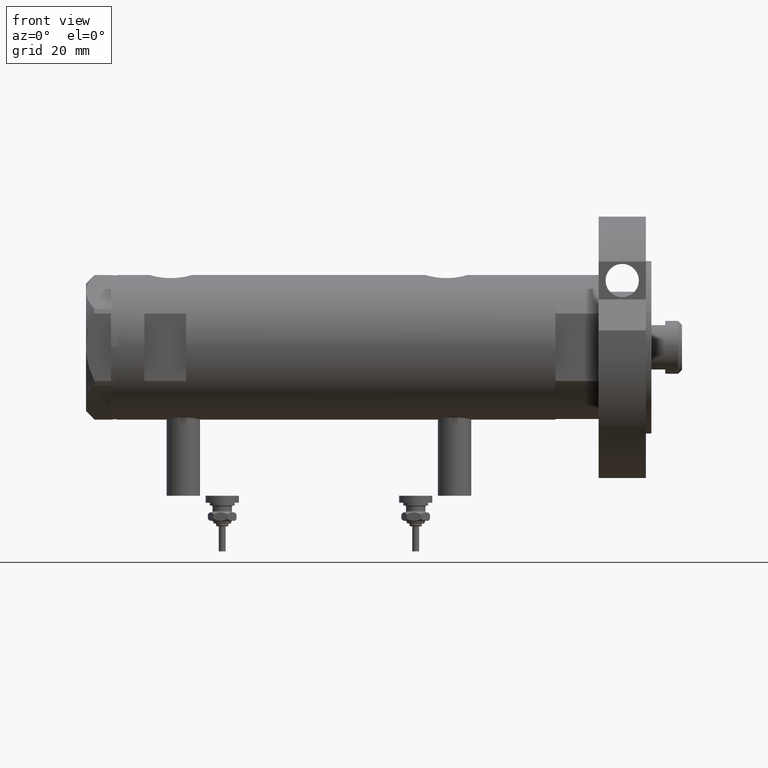
[diagram: clean part render]
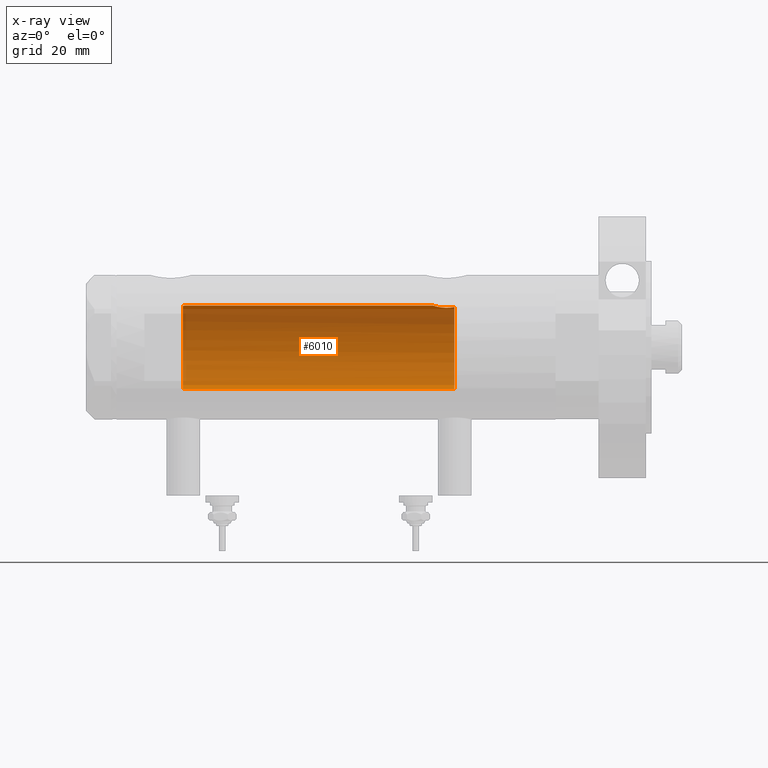
[diagram: x-ray — body ghosted, one internal face saturated and labeled with its STEP entity id]
A machine part, front view, then the same camera in x-ray: the body is ghosted and one INTERNAL B-rep face — a face not visible from any outside direction — is saturated and labeled: STEP entity #6010.
In plain terms, the highlighted cylindrical surface (partial cylindrical patch) has radius 15 mm, axis along (1, 0, -0).
Its self-contained STEP definition (entity closure, byte-faithful):
#112 = VERTEX_POINT ( 'NONE', #335 ) ;
#119 = CARTESIAN_POINT ( 'NONE',  ( 14.19413554982521219, 4.851369549374611623, -39.17746179061393264 ) ) ;
#316 = ORIENTED_EDGE ( 'NONE', *, *, #2946, .F. ) ;
#335 = CARTESIAN_POINT ( 'NONE',  ( 14.46277203719950855, 3.978470183374505975, -42.55000000000000426 ) ) ;
#407 = FACE_OUTER_BOUND ( 'NONE', #1113, .T. ) ;
#535 = AXIS2_PLACEMENT_3D ( 'NONE', #6491, #5411, #6042 ) ;
#676 = VECTOR ( 'NONE', #5733, 1000.000000000000000 ) ;
#709 = CARTESIAN_POINT ( 'NONE',  ( 14.99999999999999822, 0.3998316629799389399, 54.58500000000000085 ) ) ;
#823 = CARTESIAN_POINT ( 'NONE',  ( 15.00000000000000000, 1.836970198721029589E-15, 78.95000000000000284 ) ) ;
#1075 = VERTEX_POINT ( 'NONE', #1252 ) ;
#1090 = CARTESIAN_POINT ( 'NONE',  ( 14.84719462287499958, 2.145357993387301043, -35.37798666051606489 ) ) ;
#1113 = EDGE_LOOP ( 'NONE', ( #316, #4934, #7352, #7727, #7480, #5365 ) ) ;
#1206 = EDGE_CURVE ( 'NONE', #5496, #2021, #7620, .T. ) ;
#1252 = CARTESIAN_POINT ( 'NONE',  ( 15.00000000000000000, 5.959273468635536151E-16, -34.88499999999999801 ) ) ;
#1278 = CARTESIAN_POINT ( 'NONE',  ( 14.30778609824508152, 4.504821240468950272, -37.89964104205774476 ) ) ;
#1496 = CARTESIAN_POINT ( 'NONE',  ( 14.98404286071220781, 0.7911628595372691697, 54.63357750803344004 ) ) ;
#1608 = EDGE_CURVE ( 'NONE', #5506, #112, #5080, .T. ) ;
#1697 = CARTESIAN_POINT ( 'NONE',  ( 14.97547159671691475, 0.8856171163179413774, -34.96107436056316686 ) ) ;
#1897 = CARTESIAN_POINT ( 'NONE',  ( -15.00000000000000000, 0.000000000000000000, 78.95000000000000284 ) ) ;
#1926 = CARTESIAN_POINT ( 'NONE',  ( 14.39420242489971535, 4.221147702577646932, -42.17871871185445087 ) ) ;
#2021 = VERTEX_POINT ( 'NONE', #3070 ) ;
#2259 = CARTESIAN_POINT ( 'NONE',  ( 14.99509227038106296, 0.4430293709771138122, -34.90006686301529726 ) ) ;
#2296 = CARTESIAN_POINT ( 'NONE',  ( 14.99999999999999822, 0.2215872191885691345, -34.88500000000000512 ) ) ;
#2325 = AXIS2_PLACEMENT_3D ( 'NONE', #5487, #7278, #4756 ) ;
#2457 = CARTESIAN_POINT ( 'NONE',  ( 14.25831405531604545, 4.659025730769700502, -41.16798855846089822 ) ) ;
#2555 = CARTESIAN_POINT ( 'NONE',  ( 14.93895715383719569, 1.365440931094926480, 54.77638192761232716 ) ) ;
#2581 = CARTESIAN_POINT ( 'NONE',  ( 14.42780822725581125, 4.105572710089619548, -42.36940228115440732 ) ) ;
#2631 = CARTESIAN_POINT ( 'NONE',  ( 14.18274079043653124, 4.883732009304969424, -39.63167541567704433 ) ) ;
#2869 = B_SPLINE_CURVE_WITH_KNOTS ( 'NONE', 3,
 ( #7760, #2296, #2259, #1697, #6678, #3597, #4163, #1090, #3562, #6002, #2960, #4802, #7247, #4197, #1278, #4959, #4437, #119, #2631, #5564, #4395, #3715, #2457, #3157, #7395, #1926, #2581, #7361 ),
 .UNSPECIFIED., .F., .F.,
 ( 4, 2, 2, 2, 2, 2, 2, 2, 2, 2, 2, 2, 2, 4 ),
 ( 0.01531448496322443745, 0.01597936247866482348, 0.01664423999410521299, 0.01730911750954559902, 0.01797399502498598853, 0.01930375005586676060, 0.02063350508674753614, 0.02129838260218791524, 0.02196326011762829433, 0.02329301514850904906, 0.02395789266394942815, 0.02462277017938980378, 0.02528764769483018288, 0.02595252521027056197 ),
 .UNSPECIFIED. ) ;
#2946 = EDGE_CURVE ( 'NONE', #2021, #1075, #6373, .T. ) ;
#2960 = CARTESIAN_POINT ( 'NONE',  ( 14.64710079709035107, 3.249565827911971017, -36.10237283776275063 ) ) ;
#3005 = DIRECTION ( 'NONE',  ( -1.000000000000000000, 0.000000000000000000, 0.000000000000000000 ) ) ;
#3070 = CARTESIAN_POINT ( 'NONE',  ( 15.00000000000000000, 0.000000000000000000, 54.58500000000000085 ) ) ;
#3157 = CARTESIAN_POINT ( 'NONE',  ( 14.30582738521795072, 4.511024637967008033, -41.58517547595721453 ) ) ;
#3172 = CARTESIAN_POINT ( 'NONE',  ( 15.00000000000000000, 0.000000000000000000, 54.58500000000000085 ) ) ;
#3250 = DIRECTION ( 'NONE',  ( -0.000000000000000000, -0.000000000000000000, -1.000000000000000000 ) ) ;
#3544 = AXIS2_PLACEMENT_3D ( 'NONE', #7501, #4200, #3005 ) ;
#3562 = CARTESIAN_POINT ( 'NONE',  ( 14.81695028448457130, 2.344053258630407033, -35.48122781573722051 ) ) ;
#3585 = VECTOR ( 'NONE', #3250, 1000.000000000000000 ) ;
#3597 = CARTESIAN_POINT ( 'NONE',  ( 14.92306512695867049, 1.532295990539004116, -35.12730056478244478 ) ) ;
#3715 = CARTESIAN_POINT ( 'NONE',  ( 14.23822651595894584, 4.719656459720482644, -40.95110225956646843 ) ) ;
#3891 = CARTESIAN_POINT ( 'NONE',  ( 14.92022334814851270, 1.556082286439819828, 54.83634472570267349 ) ) ;
#4010 = CARTESIAN_POINT ( 'NONE',  ( 14.82638779339053947, 2.275571356824483082, 55.15000000000000568 ) ) ;
#4163 = CARTESIAN_POINT ( 'NONE',  ( 14.90012193493785198, 1.740148100968098577, -35.20148967824482611 ) ) ;
#4197 = CARTESIAN_POINT ( 'NONE',  ( 14.33601656325283180, 4.414747171699214157, -37.69405684818107716 ) ) ;
#4200 = DIRECTION ( 'NONE',  ( 0.000000000000000000, 0.000000000000000000, -1.000000000000000000 ) ) ;
#4395 = CARTESIAN_POINT ( 'NONE',  ( 14.20808274384303971, 4.809639920165276195, -40.51496246579131366 ) ) ;
#4437 = CARTESIAN_POINT ( 'NONE',  ( 14.23996709707015818, 4.714409263334266242, -38.52876674044652816 ) ) ;
#4520 = LINE ( 'NONE', #1897, #676 ) ;
#4554 = CARTESIAN_POINT ( 'NONE',  ( -15.00000000000000000, 0.000000000000000000, 55.15000000000000568 ) ) ;
#4756 = DIRECTION ( 'NONE',  ( -1.000000000000000000, 0.000000000000000000, 0.000000000000000000 ) ) ;
#4802 = CARTESIAN_POINT ( 'NONE',  ( 14.49939476291675078, 3.855488469592460277, -36.74998822577914837 ) ) ;
#4934 = ORIENTED_EDGE ( 'NONE', *, *, #1206, .F. ) ;
#4959 = CARTESIAN_POINT ( 'NONE',  ( 14.25987224063200465, 4.654266980155760791, -38.31645838593740905 ) ) ;
#5080 = CIRCLE ( 'NONE', #3544, 15.00000000000000000 ) ;
#5097 = CARTESIAN_POINT ( 'NONE',  ( 14.82638779339053947, 2.275571356824483082, 55.15000000000000568 ) ) ;
#5133 = CARTESIAN_POINT ( 'NONE',  ( 14.87714698525761214, 1.924825815456623568, 54.97761219789977361 ) ) ;
#5365 = ORIENTED_EDGE ( 'NONE', *, *, #6109, .F. ) ;
#5411 = DIRECTION ( 'NONE',  ( 0.000000000000000000, 0.000000000000000000, 1.000000000000000000 ) ) ;
#5487 = CARTESIAN_POINT ( 'NONE',  ( 0.000000000000000000, 0.000000000000000000, 78.95000000000000284 ) ) ;
#5496 = VERTEX_POINT ( 'NONE', #4010 ) ;
#5506 = VERTEX_POINT ( 'NONE', #7617 ) ;
#5564 = CARTESIAN_POINT ( 'NONE',  ( 14.19789541567450364, 4.839422427565552631, -40.29531557750247117 ) ) ;
#5657 = CARTESIAN_POINT ( 'NONE',  ( 14.85285765243877698, 2.103108122960815507, 55.05873200114292842 ) ) ;
#5733 = DIRECTION ( 'NONE',  ( -0.000000000000000000, -0.000000000000000000, -1.000000000000000000 ) ) ;
#6000 = EDGE_CURVE ( 'NONE', #5496, #6350, #6310, .T. ) ;
#6002 = CARTESIAN_POINT ( 'NONE',  ( 14.72004460873233000, 2.909758128378248987, -35.82614485536702631 ) ) ;
#6010 = ADVANCED_FACE ( 'NONE', ( #407 ), #7917, .F. ) ;
#6042 = DIRECTION ( 'NONE',  ( 1.000000000000000000, 0.000000000000000000, 0.000000000000000000 ) ) ;
#6109 = EDGE_CURVE ( 'NONE', #1075, #112, #2869, .T. ) ;
#6310 = CIRCLE ( 'NONE', #535, 15.00000000000000000 ) ;
#6350 = VERTEX_POINT ( 'NONE', #4554 ) ;
#6373 = LINE ( 'NONE', #823, #3585 ) ;
#6491 = CARTESIAN_POINT ( 'NONE',  ( 0.000000000000000000, 0.000000000000000000, 55.15000000000000568 ) ) ;
#6678 = CARTESIAN_POINT ( 'NONE',  ( 14.96070684509191295, 1.105917936056761253, -35.00719211967314237 ) ) ;
#7016 = EDGE_CURVE ( 'NONE', #6350, #5506, #4520, .T. ) ;
#7247 = CARTESIAN_POINT ( 'NONE',  ( 14.42796195111116830, 4.108450791336244023, -37.10736184290816198 ) ) ;
#7278 = DIRECTION ( 'NONE',  ( -0.000000000000000000, -0.000000000000000000, -1.000000000000000000 ) ) ;
#7352 = ORIENTED_EDGE ( 'NONE', *, *, #6000, .T. ) ;
#7361 = CARTESIAN_POINT ( 'NONE',  ( 14.46277203719950855, 3.978470183374505975, -42.55000000000000426 ) ) ;
#7395 = CARTESIAN_POINT ( 'NONE',  ( 14.33334483745703203, 4.423389780079196143, -41.78724945987951855 ) ) ;
#7480 = ORIENTED_EDGE ( 'NONE', *, *, #1608, .T. ) ;
#7501 = CARTESIAN_POINT ( 'NONE',  ( 0.000000000000000000, 0.000000000000000000, -42.55000000000000426 ) ) ;
#7617 = CARTESIAN_POINT ( 'NONE',  ( -15.00000000000000000, 0.000000000000000000, -42.55000000000000426 ) ) ;
#7620 = B_SPLINE_CURVE_WITH_KNOTS ( 'NONE', 3,
 ( #5097, #5657, #5133, #3891, #2555, #1496, #709, #3172 ),
 .UNSPECIFIED., .F., .F.,
 ( 4, 2, 2, 4 ),
 ( 0.02826119741494479559, 0.02885214443185066258, 0.02944309144875652956, 0.03062498548256826700 ),
 .UNSPECIFIED. ) ;
#7727 = ORIENTED_EDGE ( 'NONE', *, *, #7016, .T. ) ;
#7760 = CARTESIAN_POINT ( 'NONE',  ( 15.00000000000000000, 5.959273468635536151E-16, -34.88499999999999801 ) ) ;
#7917 = CYLINDRICAL_SURFACE ( 'NONE', #2325, 15.00000000000000000 ) ;